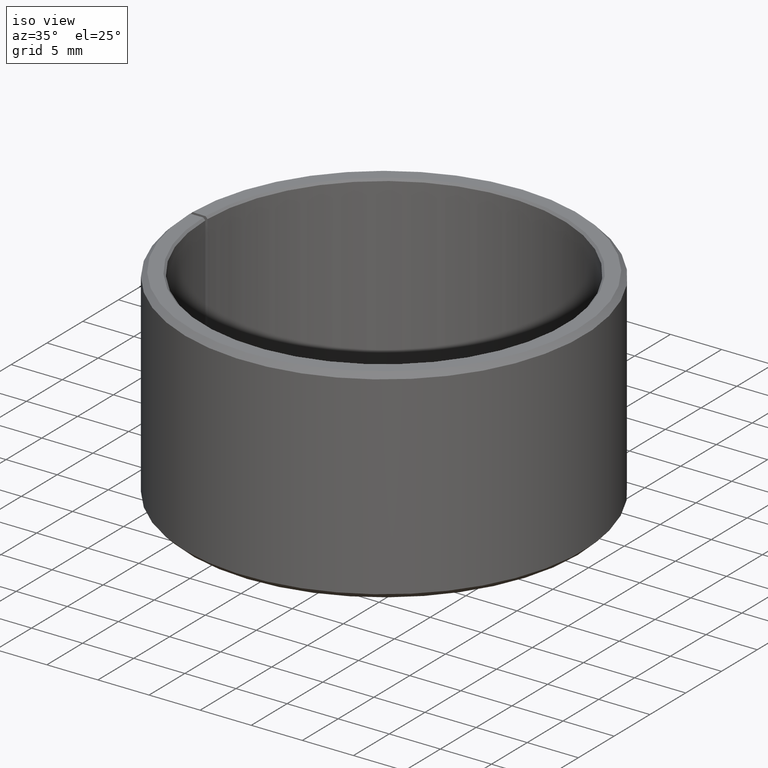
[diagram: clean part render]
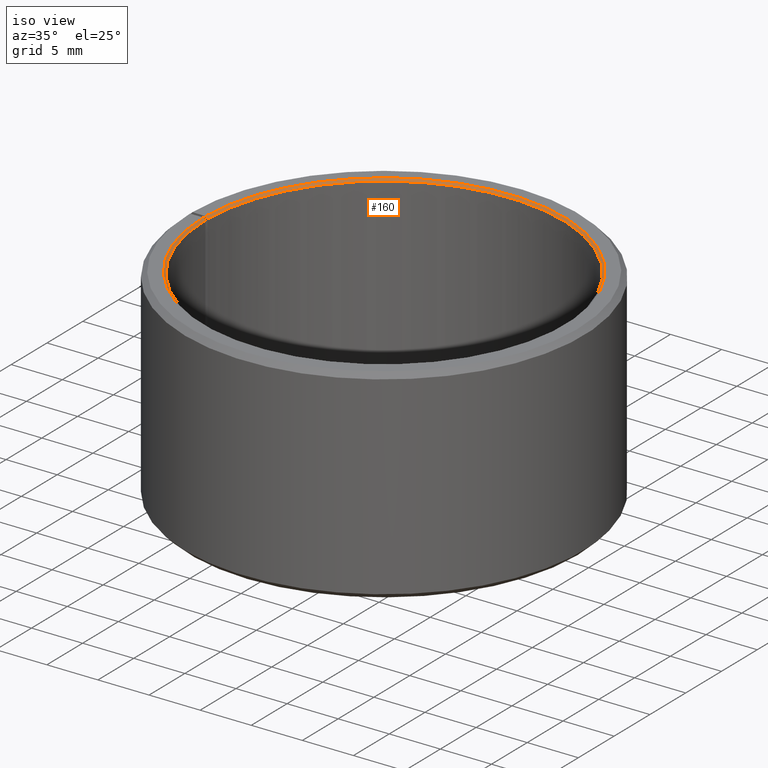
[diagram: same view with one face highlighted and labeled with its STEP entity id]
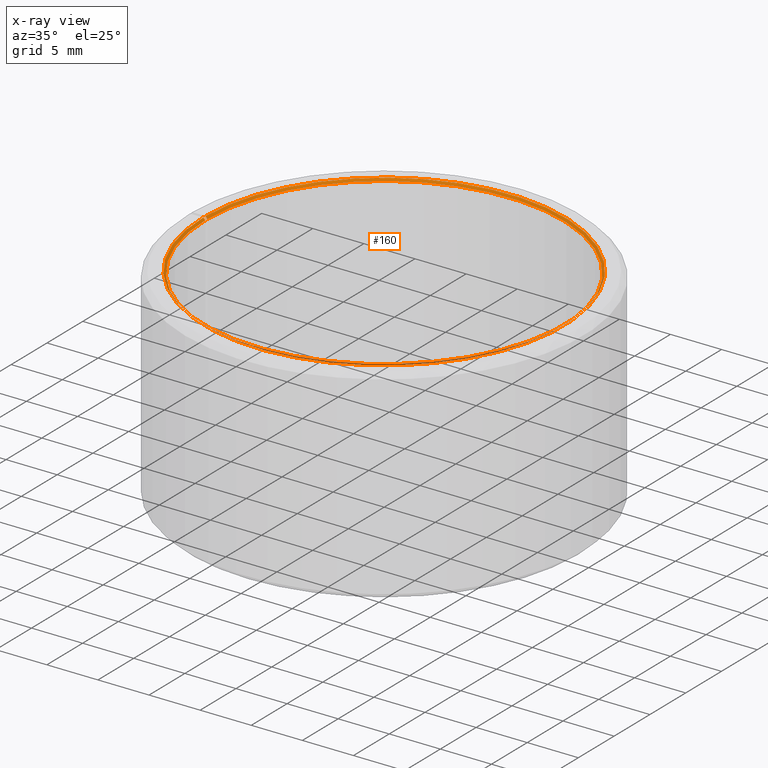
[diagram: x-ray of the same camera — body ghosted, the highlighted face saturated]
A machine part, iso view. The second image highlights one B-rep face of the part: STEP entity #160.
The next image is the same camera in x-ray: the body ghosted, the highlighted face saturated — about 0% of this face is hidden behind the body in this view.
In plain terms, the highlighted conical surface has half-angle 45 deg.
Its self-contained STEP definition (entity closure, byte-faithful):
#160=ADVANCED_FACE('',(#179),#180,.F.);
#179=FACE_OUTER_BOUND('',#200,.T.);
#180=CONICAL_SURFACE('',#201,0.0177,0.785398163397448);
#200=EDGE_LOOP('',(#255,#256,#257,#258));
#201=AXIS2_PLACEMENT_3D('',#259,#260,#261);
#255=ORIENTED_EDGE('',*,*,#286,.T.);
#256=ORIENTED_EDGE('',*,*,#306,.F.);
#257=ORIENTED_EDGE('',*,*,#304,.F.);
#258=ORIENTED_EDGE('',*,*,#307,.T.);
#259=CARTESIAN_POINT('',(-4.33680868994202E-018,-2.60208521396521E-018,0.02));
#260=DIRECTION('',(-6.12323399573677E-017,0.0,1.0));
#261=DIRECTION('',(1.0,0.0,6.12323399573677E-017));
#286=EDGE_CURVE('',#313,#311,#314,.T.);
#304=EDGE_CURVE('',#341,#343,#344,.T.);
#306=EDGE_CURVE('',#343,#311,#346,.T.);
#307=EDGE_CURVE('',#341,#313,#347,.T.);
#311=VERTEX_POINT('',#351);
#313=VERTEX_POINT('',#354);
#314=CIRCLE('',#355,0.0175);
#341=VERTEX_POINT('',#393);
#343=VERTEX_POINT('',#396);
#344=CIRCLE('',#397,0.0177);
#346=LINE('',#400,#401);
#347=LINE('',#402,#403);
#351=CARTESIAN_POINT('',(-4.33680868994202E-018,0.0175,0.0198));
#354=CARTESIAN_POINT('',(0.000305417112652458,0.0174973346652368,0.0198));
#355=AXIS2_PLACEMENT_3D('',#408,#409,#410);
#393=CARTESIAN_POINT('',(0.000308907593939914,0.0176973042042681,0.02));
#396=CARTESIAN_POINT('',(-4.33680868994202E-018,0.0177,0.02));
#397=AXIS2_PLACEMENT_3D('',#438,#439,#440);
#400=CARTESIAN_POINT('',(-4.33680868994202E-018,0.0177,0.02));
#401=VECTOR('',#442,1.0);
#402=CARTESIAN_POINT('',(0.000308907593939914,0.0176973042042681,0.02));
#403=VECTOR('',#443,1.0);
#408=CARTESIAN_POINT('',(-4.33680868994202E-018,-2.60208521396521E-018,0.0198));
#409=DIRECTION('',(6.12323399573677E-017,0.0,-1.0));
#410=DIRECTION('',(-1.0,0.0,-6.12323399573677E-017));
#438=CARTESIAN_POINT('',(-4.33680868994202E-018,-2.60208521396521E-018,0.02));
#439=DIRECTION('',(6.12323399573677E-017,0.0,-1.0));
#440=DIRECTION('',(-1.0,0.0,-6.12323399573677E-017));
#442=DIRECTION('',(0.0,-0.707106781186548,-0.707106781186548));
#443=DIRECTION('',(-0.012340714939827,-0.706999085398824,-0.707106781186548));